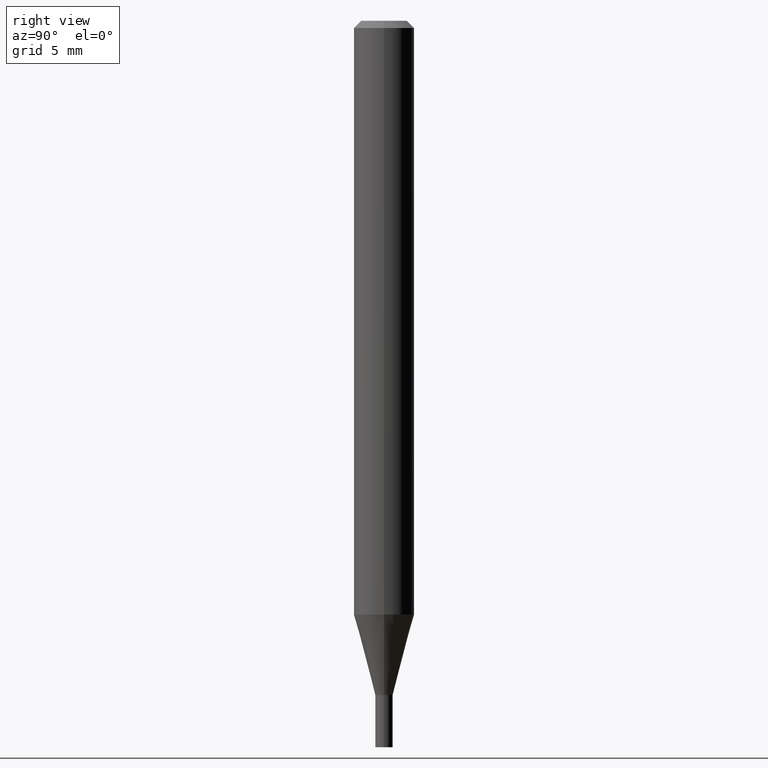
[diagram: clean part render]
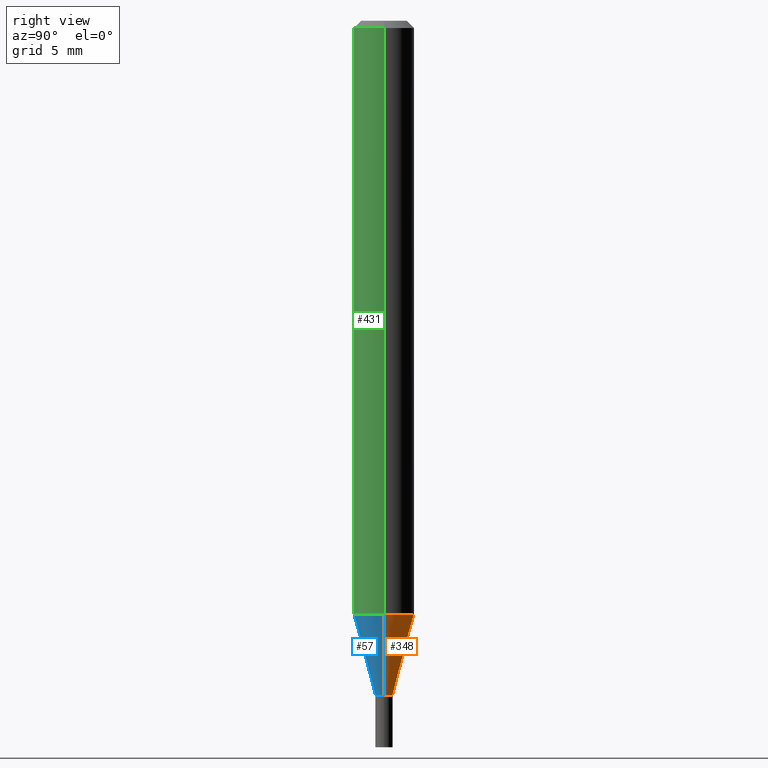
[diagram: same view with three faces highlighted in distinct colors, each labeled with its STEP entity id]
A machine part, right view with three faces highlighted in distinct colors.
Their STEP definitions:

[orange] entity #348 — the highlighted conical surface has half-angle 15 deg.
#3 = CARTESIAN_POINT ( 'NONE',  ( 0.06250000000000000000, -4.716725025139311787E-15, -1.225923739063184081 ) ) ;
#4 = CIRCLE ( 'NONE', #100, 0.01799999999999964476 ) ;
#23 = VERTEX_POINT ( 'NONE', #3 ) ;
#38 = EDGE_LOOP ( 'NONE', ( #454, #422, #61, #77 ) ) ;
#61 = ORIENTED_EDGE ( 'NONE', *, *, #391, .F. ) ;
#77 = ORIENTED_EDGE ( 'NONE', *, *, #124, .F. ) ;
#85 = CARTESIAN_POINT ( 'NONE',  ( -0.06250000000000000000, -3.836200647933857502E-15, -1.225923739063184081 ) ) ;
#90 = VECTOR ( 'NONE', #168, 39.37007874015748854 ) ;
#93 = LINE ( 'NONE', #306, #90 ) ;
#100 = AXIS2_PLACEMENT_3D ( 'NONE', #411, #440, #118 ) ;
#103 = DIRECTION ( 'NONE',  ( -2.445468806185136597E-29, 3.491481338843145583E-15, 1.000000000000000000 ) ) ;
#118 = DIRECTION ( 'NONE',  ( 1.000000000000000000, -6.982962677686254878E-15, 0.000000000000000000 ) ) ;
#124 = EDGE_CURVE ( 'NONE', #166, #23, #93, .T. ) ;
#126 = FACE_OUTER_BOUND ( 'NONE', #38, .T. ) ;
#135 = DIRECTION ( 'NONE',  ( 1.000000000000000000, -6.982962677686270655E-15, 0.000000000000000000 ) ) ;
#159 = CARTESIAN_POINT ( 'NONE',  ( 3.404092578209710223E-29, -4.860142023669658418E-15, -1.392000000000000126 ) ) ;
#164 = VECTOR ( 'NONE', #186, 39.37007874015748854 ) ;
#166 = VERTEX_POINT ( 'NONE', #433 ) ;
#168 = DIRECTION ( 'NONE',  ( 0.2588190451025212391, 1.565188264969622362E-15, 0.9659258262890679791 ) ) ;
#186 = DIRECTION ( 'NONE',  ( -0.2588190451025212391, 5.211531920934549464E-15, 0.9659258262890679791 ) ) ;
#200 = DIRECTION ( 'NONE',  ( 1.000000000000000000, -6.982962677686254878E-15, 0.000000000000000000 ) ) ;
#201 = VERTEX_POINT ( 'NONE', #85 ) ;
#231 = CARTESIAN_POINT ( 'NONE',  ( 2.997958262640863701E-29, -4.280289857783920907E-15, -1.225923739063184081 ) ) ;
#236 = EDGE_CURVE ( 'NONE', #400, #201, #331, .T. ) ;
#293 = CARTESIAN_POINT ( 'NONE',  ( -0.01799999999999964476, -4.732244331232842637E-15, -1.392000000000000126 ) ) ;
#300 = EDGE_CURVE ( 'NONE', #166, #400, #4, .T. ) ;
#306 = CARTESIAN_POINT ( 'NONE',  ( 0.01799999999999964476, -4.985835351868008252E-15, -1.392000000000000126 ) ) ;
#326 = CIRCLE ( 'NONE', #463, 0.06250000000000000000 ) ;
#331 = LINE ( 'NONE', #293, #164 ) ;
#336 = DIRECTION ( 'NONE',  ( -2.445468806185136597E-29, 3.491481338843145583E-15, 1.000000000000000000 ) ) ;
#348 = ADVANCED_FACE ( 'NONE', ( #126 ), #425, .T. ) ;
#391 = EDGE_CURVE ( 'NONE', #23, #201, #326, .T. ) ;
#400 = VERTEX_POINT ( 'NONE', #415 ) ;
#411 = CARTESIAN_POINT ( 'NONE',  ( 3.404092578209710223E-29, -4.860142023669658418E-15, -1.392000000000000126 ) ) ;
#415 = CARTESIAN_POINT ( 'NONE',  ( -0.01799999999999964476, -4.284222489583350069E-15, -1.392000000000000126 ) ) ;
#422 = ORIENTED_EDGE ( 'NONE', *, *, #236, .T. ) ;
#425 = CONICAL_SURFACE ( 'NONE', #445, 0.01799999999999964476, 0.2617993877991499629 ) ;
#433 = CARTESIAN_POINT ( 'NONE',  ( 0.01799999999999964476, -4.985835351868008252E-15, -1.392000000000000126 ) ) ;
#440 = DIRECTION ( 'NONE',  ( -2.445468806185136597E-29, 3.491481338843145583E-15, 1.000000000000000000 ) ) ;
#445 = AXIS2_PLACEMENT_3D ( 'NONE', #159, #103, #200 ) ;
#454 = ORIENTED_EDGE ( 'NONE', *, *, #300, .T. ) ;
#463 = AXIS2_PLACEMENT_3D ( 'NONE', #231, #336, #135 ) ;

[blue] entity #57 — the highlighted conical surface has half-angle 15 deg.
#1 = ORIENTED_EDGE ( 'NONE', *, *, #313, .T. ) ;
#3 = CARTESIAN_POINT ( 'NONE',  ( 0.06250000000000000000, -4.716725025139311787E-15, -1.225923739063184081 ) ) ;
#23 = VERTEX_POINT ( 'NONE', #3 ) ;
#44 = EDGE_CURVE ( 'NONE', #201, #23, #283, .T. ) ;
#57 = ADVANCED_FACE ( 'NONE', ( #279 ), #255, .T. ) ;
#64 = ORIENTED_EDGE ( 'NONE', *, *, #236, .F. ) ;
#72 = DIRECTION ( 'NONE',  ( 1.000000000000000000, -6.982962677686254878E-15, 0.000000000000000000 ) ) ;
#83 = CARTESIAN_POINT ( 'NONE',  ( 3.404092578209710223E-29, -4.860142023669658418E-15, -1.392000000000000126 ) ) ;
#85 = CARTESIAN_POINT ( 'NONE',  ( -0.06250000000000000000, -3.836200647933857502E-15, -1.225923739063184081 ) ) ;
#90 = VECTOR ( 'NONE', #168, 39.37007874015748854 ) ;
#93 = LINE ( 'NONE', #306, #90 ) ;
#105 = CARTESIAN_POINT ( 'NONE',  ( 3.404092578209710223E-29, -4.860142023669658418E-15, -1.392000000000000126 ) ) ;
#111 = DIRECTION ( 'NONE',  ( -2.445468806185136597E-29, 3.491481338843145583E-15, 1.000000000000000000 ) ) ;
#124 = EDGE_CURVE ( 'NONE', #166, #23, #93, .T. ) ;
#164 = VECTOR ( 'NONE', #186, 39.37007874015748854 ) ;
#166 = VERTEX_POINT ( 'NONE', #433 ) ;
#168 = DIRECTION ( 'NONE',  ( 0.2588190451025212391, 1.565188264969622362E-15, 0.9659258262890679791 ) ) ;
#184 = EDGE_LOOP ( 'NONE', ( #64, #1, #340, #356 ) ) ;
#186 = DIRECTION ( 'NONE',  ( -0.2588190451025212391, 5.211531920934549464E-15, 0.9659258262890679791 ) ) ;
#201 = VERTEX_POINT ( 'NONE', #85 ) ;
#209 = DIRECTION ( 'NONE',  ( 1.000000000000000000, -6.982962677686270655E-15, 0.000000000000000000 ) ) ;
#217 = AXIS2_PLACEMENT_3D ( 'NONE', #83, #223, #365 ) ;
#223 = DIRECTION ( 'NONE',  ( -2.445468806185136597E-29, 3.491481338843145583E-15, 1.000000000000000000 ) ) ;
#225 = AXIS2_PLACEMENT_3D ( 'NONE', #105, #355, #72 ) ;
#230 = AXIS2_PLACEMENT_3D ( 'NONE', #388, #111, #209 ) ;
#236 = EDGE_CURVE ( 'NONE', #400, #201, #331, .T. ) ;
#255 = CONICAL_SURFACE ( 'NONE', #225, 0.01799999999999964476, 0.2617993877991499629 ) ;
#279 = FACE_OUTER_BOUND ( 'NONE', #184, .T. ) ;
#283 = CIRCLE ( 'NONE', #230, 0.06250000000000000000 ) ;
#293 = CARTESIAN_POINT ( 'NONE',  ( -0.01799999999999964476, -4.732244331232842637E-15, -1.392000000000000126 ) ) ;
#306 = CARTESIAN_POINT ( 'NONE',  ( 0.01799999999999964476, -4.985835351868008252E-15, -1.392000000000000126 ) ) ;
#313 = EDGE_CURVE ( 'NONE', #400, #166, #423, .T. ) ;
#331 = LINE ( 'NONE', #293, #164 ) ;
#340 = ORIENTED_EDGE ( 'NONE', *, *, #124, .T. ) ;
#355 = DIRECTION ( 'NONE',  ( -2.445468806185136597E-29, 3.491481338843145583E-15, 1.000000000000000000 ) ) ;
#356 = ORIENTED_EDGE ( 'NONE', *, *, #44, .F. ) ;
#365 = DIRECTION ( 'NONE',  ( 1.000000000000000000, -6.982962677686254878E-15, 0.000000000000000000 ) ) ;
#388 = CARTESIAN_POINT ( 'NONE',  ( 2.997958262640863701E-29, -4.280289857783920907E-15, -1.225923739063184081 ) ) ;
#400 = VERTEX_POINT ( 'NONE', #415 ) ;
#415 = CARTESIAN_POINT ( 'NONE',  ( -0.01799999999999964476, -4.284222489583350069E-15, -1.392000000000000126 ) ) ;
#423 = CIRCLE ( 'NONE', #217, 0.01799999999999964476 ) ;
#433 = CARTESIAN_POINT ( 'NONE',  ( 0.01799999999999964476, -4.985835351868008252E-15, -1.392000000000000126 ) ) ;

[green] entity #431 — the highlighted cylindrical surface (edge-blend (fillet) strip) has radius 1.5875 mm, axis along (-0, 0, 1).
#3 = CARTESIAN_POINT ( 'NONE',  ( 0.06250000000000000000, -4.716725025139311787E-15, -1.225923739063184081 ) ) ;
#11 = DIRECTION ( 'NONE',  ( -2.445468806185136597E-29, 3.491481338843145583E-15, 1.000000000000000000 ) ) ;
#12 = DIRECTION ( 'NONE',  ( -2.445468806185136877E-29, 3.491481338843145188E-15, 1.000000000000000000 ) ) ;
#19 = DIRECTION ( 'NONE',  ( 1.000000000000000000, -6.982962677686266711E-15, 4.876176775795935793E-29 ) ) ;
#23 = VERTEX_POINT ( 'NONE', #3 ) ;
#44 = EDGE_CURVE ( 'NONE', #201, #23, #283, .T. ) ;
#47 = LINE ( 'NONE', #121, #156 ) ;
#59 = EDGE_LOOP ( 'NONE', ( #284, #114, #399, #344 ) ) ;
#73 = VECTOR ( 'NONE', #244, 39.37007874015748143 ) ;
#85 = CARTESIAN_POINT ( 'NONE',  ( -0.06250000000000000000, -3.836200647933857502E-15, -1.225923739063184081 ) ) ;
#106 = CARTESIAN_POINT ( 'NONE',  ( -0.06250000000000000000, -1.722241829083221574E-15, -0.01499999999999999944 ) ) ;
#111 = DIRECTION ( 'NONE',  ( -2.445468806185136597E-29, 3.491481338843145583E-15, 1.000000000000000000 ) ) ;
#114 = ORIENTED_EDGE ( 'NONE', *, *, #44, .T. ) ;
#121 = CARTESIAN_POINT ( 'NONE',  ( 0.06250000000000000000, -4.364351673553916694E-16, 3.047610484872459871E-30 ) ) ;
#130 = EDGE_CURVE ( 'NONE', #201, #144, #457, .T. ) ;
#144 = VERTEX_POINT ( 'NONE', #106 ) ;
#156 = VECTOR ( 'NONE', #12, 39.37007874015748143 ) ;
#189 = EDGE_CURVE ( 'NONE', #144, #385, #212, .T. ) ;
#190 = DIRECTION ( 'NONE',  ( 1.000000000000000000, -6.982962677686266711E-15, 0.000000000000000000 ) ) ;
#201 = VERTEX_POINT ( 'NONE', #85 ) ;
#209 = DIRECTION ( 'NONE',  ( 1.000000000000000000, -6.982962677686270655E-15, 0.000000000000000000 ) ) ;
#212 = CIRCLE ( 'NONE', #451, 0.06250000000000000000 ) ;
#230 = AXIS2_PLACEMENT_3D ( 'NONE', #388, #111, #209 ) ;
#244 = DIRECTION ( 'NONE',  ( -2.445468806185136877E-29, 3.491481338843145188E-15, 1.000000000000000000 ) ) ;
#264 = DIRECTION ( 'NONE',  ( -2.445468806185136597E-29, 3.491481338843145583E-15, 1.000000000000000000 ) ) ;
#273 = CYLINDRICAL_SURFACE ( 'NONE', #333, 0.06250000000000000000 ) ;
#281 = EDGE_CURVE ( 'NONE', #23, #385, #47, .T. ) ;
#283 = CIRCLE ( 'NONE', #230, 0.06250000000000000000 ) ;
#284 = ORIENTED_EDGE ( 'NONE', *, *, #130, .F. ) ;
#333 = AXIS2_PLACEMENT_3D ( 'NONE', #376, #264, #19 ) ;
#344 = ORIENTED_EDGE ( 'NONE', *, *, #189, .F. ) ;
#374 = CARTESIAN_POINT ( 'NONE',  ( 0.06250000000000000000, -4.888073874380388472E-16, -0.01499999999999999944 ) ) ;
#376 = CARTESIAN_POINT ( 'NONE',  ( 0.000000000000000000, 0.000000000000000000, 0.000000000000000000 ) ) ;
#384 = FACE_OUTER_BOUND ( 'NONE', #59, .T. ) ;
#385 = VERTEX_POINT ( 'NONE', #374 ) ;
#388 = CARTESIAN_POINT ( 'NONE',  ( 2.997958262640863701E-29, -4.280289857783920907E-15, -1.225923739063184081 ) ) ;
#399 = ORIENTED_EDGE ( 'NONE', *, *, #281, .T. ) ;
#407 = CARTESIAN_POINT ( 'NONE',  ( 3.668203209277705088E-31, -5.237222008264718399E-17, -0.01499999999999999944 ) ) ;
#419 = CARTESIAN_POINT ( 'NONE',  ( -0.06250000000000000000, 4.440892098500626162E-16, -3.074334431409316114E-30 ) ) ;
#431 = ADVANCED_FACE ( 'NONE', ( #384 ), #273, .T. ) ;
#451 = AXIS2_PLACEMENT_3D ( 'NONE', #407, #11, #190 ) ;
#457 = LINE ( 'NONE', #419, #73 ) ;